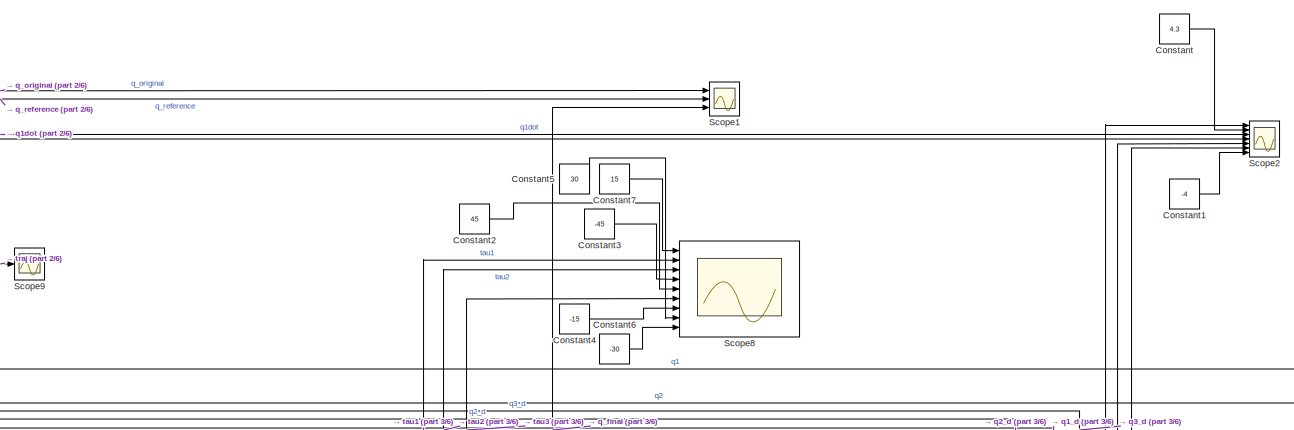
[diagram: root canvas - part 1/6, top right region]
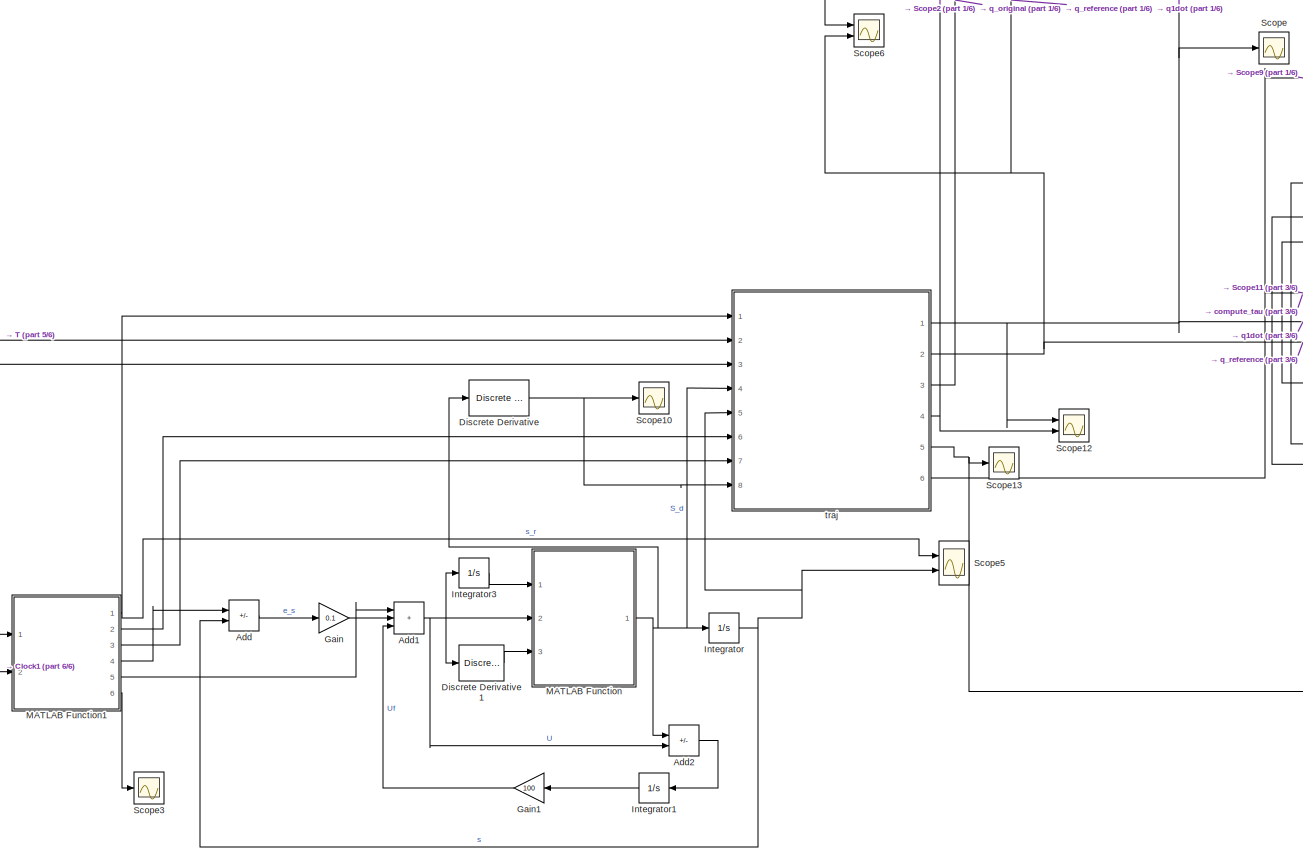
[diagram: root canvas - part 2/6, left side, full height]
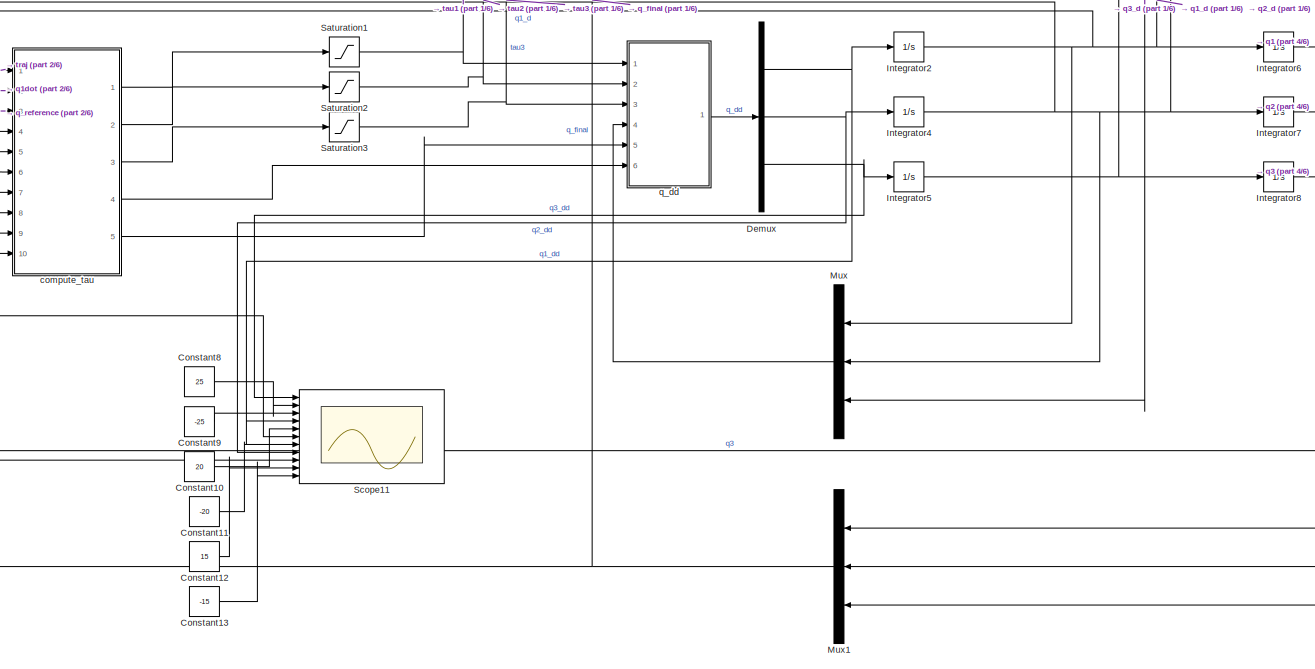
[diagram: root canvas - part 3/6, bottom right region]
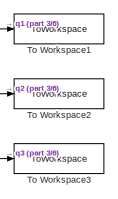
[diagram: root canvas - part 4/6, middle right region]
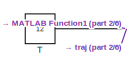
[diagram: root canvas - part 5/6, middle left region]
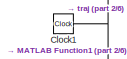
[diagram: root canvas - part 6/6, bottom left region]
MODEL slx_d51e2725e749
KIND model
CONFIG AbsTol = auto
CONFIG EnableMultiTasking = off
CONFIG FixedStep = auto
CONFIG MaxStep = 0.05
CONFIG MinStep = auto
CONFIG RelTol = 1e-3
CONFIG SampleTimeConstraint = Unconstrained
CONFIG SolverName = VariableStepAuto
CONFIG StartTime = 0.0
CONFIG StopTime = 12
BLOCK [Sum] Add
  IconShape = rectangular
  Inputs = +-
  Ports = [2, 1]
BLOCK [Sum] Add1
  IconShape = rectangular
  Inputs = +++
  Ports = [3, 1]
BLOCK [Sum] Add2
  IconShape = rectangular
  Inputs = +-
  Ports = [2, 1]
BLOCK [Clock] Clock1
BLOCK [Constant] Constant
  Value = 4.3
BLOCK [Constant] Constant1
  Value = -4
BLOCK [Constant] Constant10
  Value = 20
BLOCK [Constant] Constant11
  Value = -20
BLOCK [Constant] Constant12
  Value = 15
BLOCK [Constant] Constant13
  Value = -15
BLOCK [Constant] Constant2
  Value = 45
BLOCK [Constant] Constant3
  Value = -45
BLOCK [Constant] Constant4
  Value = -15
BLOCK [Constant] Constant5
  Value = 30
BLOCK [Constant] Constant6
  Value = -30
BLOCK [Constant] Constant7
  Value = 15
BLOCK [Constant] Constant8
  Value = 25
BLOCK [Constant] Constant9
  Value = -25
BLOCK [Demux] Demux
  Outputs = 3
  Ports = [1, 3]
BLOCK [Reference] Discrete Derivative  REF=simulink/Discrete/Discrete Derivative
  Ports = [1, 1]
  SourceBlock = simulink/Discrete/Discrete Derivative
  SourceProductBaseCode = SL
  SourceType = Discrete Derivative
BLOCK [Reference] Discrete Derivative1  REF=simulink/Discrete/Discrete Derivative
  Ports = [1, 1]
  SourceBlock = simulink/Discrete/Discrete Derivative
  SourceProductBaseCode = SL
  SourceType = Discrete Derivative
BLOCK [Gain] Gain
  Gain = 0.1
BLOCK [Gain] Gain1
  Gain = 100
BLOCK [Integrator] Integrator
  Ports = [1, 1]
BLOCK [Integrator] Integrator1
  Ports = [1, 1]
BLOCK [Integrator] Integrator2
  Ports = [1, 1]
BLOCK [Integrator] Integrator3
  Ports = [1, 1]
BLOCK [Integrator] Integrator4
  Ports = [1, 1]
BLOCK [Integrator] Integrator5
  Ports = [1, 1]
BLOCK [Integrator] Integrator6
  InitialCondition = 2.6180
  Ports = [1, 1]
BLOCK [Integrator] Integrator7
  InitialCondition = -2.0944
  Ports = [1, 1]
BLOCK [Integrator] Integrator8
  InitialCondition = -0.5236
  Ports = [1, 1]
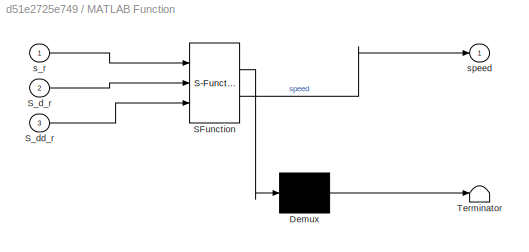
BLOCK [SubSystem] MATLAB Function
  ErrorFcn = Stateflow.Translate.translate
  PermitHierarchicalResolution = ExplicitOnly
  Ports = [3, 1]
  RequestExecContextInheritance = off
  SFBlockType = MATLAB Function
  TreatAsAtomicUnit = on
BLOCK [Demux] MATLAB Function/ Demux 
  Outputs = 1
  Ports = [1, 1]
BLOCK [S-Function] MATLAB Function/ SFunction 
  EnableBusSupport = on
  FunctionName = sf_sfun
  PortCounts = [3 2]
  Ports = [3, 2]
  SFcnIsStateOwnerBlock = off
  SFunctionDeploymentMode = off
  Tag = Stateflow S-Function 5
BLOCK [Terminator] MATLAB Function/ Terminator 
BLOCK [Inport] MATLAB Function/S_d_r
  Port = 2
BLOCK [Inport] MATLAB Function/S_dd_r
  Port = 3
BLOCK [Inport] MATLAB Function/s_r
BLOCK [Outport] MATLAB Function/speed
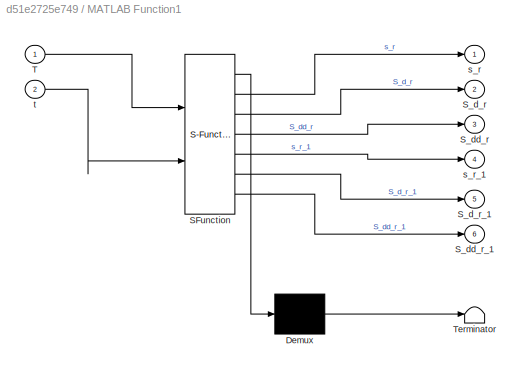
BLOCK [SubSystem] MATLAB Function1
  ErrorFcn = Stateflow.Translate.translate
  PermitHierarchicalResolution = ExplicitOnly
  Ports = [2, 6]
  RequestExecContextInheritance = off
  SFBlockType = MATLAB Function
  TreatAsAtomicUnit = on
BLOCK [Demux] MATLAB Function1/ Demux 
  Outputs = 1
  Ports = [1, 1]
BLOCK [S-Function] MATLAB Function1/ SFunction 
  EnableBusSupport = on
  FunctionName = sf_sfun
  PortCounts = [2 7]
  Ports = [2, 7]
  SFcnIsStateOwnerBlock = off
  SFunctionDeploymentMode = off
  Tag = Stateflow S-Function 3
BLOCK [Terminator] MATLAB Function1/ Terminator 
BLOCK [Outport] MATLAB Function1/S_d_r
  Port = 2
BLOCK [Outport] MATLAB Function1/S_d_r_1
  Port = 5
BLOCK [Outport] MATLAB Function1/S_dd_r
  Port = 3
BLOCK [Outport] MATLAB Function1/S_dd_r_1
  Port = 6
BLOCK [Inport] MATLAB Function1/T
BLOCK [Outport] MATLAB Function1/s_r
BLOCK [Outport] MATLAB Function1/s_r_1
  Port = 4
BLOCK [Inport] MATLAB Function1/t
  Port = 2
BLOCK [Mux] Mux
  DisplayOption = bar
  Inputs = 3
  NameLocation = top
  Ports = [3, 1]
BLOCK [Mux] Mux1
  DisplayOption = bar
  Inputs = 3
  NameLocation = top
  Ports = [3, 1]
BLOCK [Saturate] Saturation1
  LinearizeAsGain = off
  LowerLimit = -45
  UpperLimit = 45
  ZeroCross = off
BLOCK [Saturate] Saturation2
  LinearizeAsGain = off
  LowerLimit = -30
  UpperLimit = 30
  ZeroCross = off
BLOCK [Saturate] Saturation3
  LinearizeAsGain = off
  LowerLimit = -15
  UpperLimit = 15
  ZeroCross = off
BLOCK [Scope] Scope
  Floating = off
  NumInputPorts = 1
  Ports = [1]
  ScopeSpecificationString = Simulink.scopes.TimeScopeBlockCfg('CurrentConfiguration', extmgr.ConfigurationSet(extmgr.Configuration('Core','General UI',true),extmgr.Configuration('Core','Source UI',true),extmgr.Configuration('Sources','WiredSimulink',true,'DataLoggingVariableName','ScopeData1'),extmgr.Configuration('Visuals','Time Domain',true,'SerializedDisplays',{struct('MinYLimReal','-4.88616','MaxYLimReal','4.94424','YLab...<+1415ch>
BLOCK [Scope] Scope1
  Floating = off
  NumInputPorts = 3
  Ports = [3]
  ScopeSpecificationString = Simulink.scopes.TimeScopeBlockCfg('CurrentConfiguration', extmgr.ConfigurationSet(extmgr.Configuration('Core','General UI',true,'FigureColor',[1 1 1]),extmgr.Configuration('Core','Source UI',true),extmgr.Configuration('Sources','WiredSimulink',true,'DataLoggingVariableName','ScopeData2'),extmgr.Configuration('Visuals','Time Domain',true,'SerializedDisplays',{struct('MinYLimReal','-3.46179','MaxYLi...<+2127ch>
BLOCK [Scope] Scope10
  Floating = off
  NumInputPorts = 1
  Ports = [1]
  ScopeSpecificationString = Simulink.scopes.TimeScopeBlockCfg('CurrentConfiguration', extmgr.ConfigurationSet(extmgr.Configuration('Core','General UI',true),extmgr.Configuration('Core','Source UI',true),extmgr.Configuration('Sources','WiredSimulink',true,'DataLoggingVariableName','ScopeData1'),extmgr.Configuration('Visuals','Time Domain',true,'SerializedDisplays',{struct('MinYLimReal','-0.04466','MaxYLimReal','0.0458','YLabe...<+1374ch>
BLOCK [Scope] Scope11
  Floating = off
  NumInputPorts = 11
  Ports = [11]
  ScopeSpecificationString = Simulink.scopes.TimeScopeBlockCfg('CurrentConfiguration', extmgr.ConfigurationSet(extmgr.Configuration('Core','General UI',true,'FigureColor',[1 1 1]),extmgr.Configuration('Core','Source UI',true),extmgr.Configuration('Sources','WiredSimulink',true,'DataLoggingVariableName','ScopeData2'),extmgr.Configuration('Visuals','Time Domain',true,'SerializedDisplays',{struct('MinYLimReal','-31.25','MaxYLimR...<+3347ch>
BLOCK [Scope] Scope12
  Floating = off
  NumInputPorts = 2
  Ports = [2]
  ScopeSpecificationString = Simulink.scopes.TimeScopeBlockCfg('CurrentConfiguration', extmgr.ConfigurationSet(extmgr.Configuration('Core','General UI',true),extmgr.Configuration('Core','Source UI',true),extmgr.Configuration('Sources','WiredSimulink',true,'DataLoggingVariableName','ScopeData1'),extmgr.Configuration('Visuals','Time Domain',true,'SerializedDisplays',{struct('MinYLimReal','-5.2981','MaxYLimReal','5.66192','YLabe...<+1605ch>
BLOCK [Scope] Scope13
  Floating = off
  NumInputPorts = 1
  Ports = [1]
  ScopeSpecificationString = Simulink.scopes.TimeScopeBlockCfg('CurrentConfiguration', extmgr.ConfigurationSet(extmgr.Configuration('Core','General UI',true),extmgr.Configuration('Core','Source UI',true),extmgr.Configuration('Sources','WiredSimulink',true,'DataLoggingVariableName','ScopeData2'),extmgr.Configuration('Visuals','Time Domain',true),extmgr.Configuration('Tools','Plot Navigation',true),extmgr.Configuration('Tools',...<+40ch>
BLOCK [Scope] Scope2
  Floating = off
  NumInputPorts = 7
  Ports = [7]
  ScopeSpecificationString = Simulink.scopes.TimeScopeBlockCfg('CurrentConfiguration', extmgr.ConfigurationSet(extmgr.Configuration('Core','General UI',true,'FigureColor',[1 1 1]),extmgr.Configuration('Core','Source UI',true),extmgr.Configuration('Sources','WiredSimulink',true,'DataLoggingVariableName','ScopeData3'),extmgr.Configuration('Visuals','Time Domain',true,'SerializedDisplays',{struct('MinYLimReal','-4.43538','MaxYLi...<+2607ch>
BLOCK [Scope] Scope3
  Floating = off
  NumInputPorts = 1
  Ports = [1]
  ScopeSpecificationString = Simulink.scopes.TimeScopeBlockCfg('CurrentConfiguration', extmgr.ConfigurationSet(extmgr.Configuration('Core','General UI',true),extmgr.Configuration('Core','Source UI',true),extmgr.Configuration('Sources','WiredSimulink',true,'DataLoggingVariableName','ScopeData1'),extmgr.Configuration('Visuals','Time Domain',true),extmgr.Configuration('Tools','Plot Navigation',true),extmgr.Configuration('Tools',...<+40ch>
BLOCK [Scope] Scope5
  Floating = off
  NumInputPorts = 2
  Ports = [2]
  ScopeSpecificationString = Simulink.scopes.TimeScopeBlockCfg('CurrentConfiguration', extmgr.ConfigurationSet(extmgr.Configuration('Core','General UI',true),extmgr.Configuration('Core','Source UI',true),extmgr.Configuration('Sources','WiredSimulink',true,'DataLoggingVariableName','ScopeData6'),extmgr.Configuration('Visuals','Time Domain',true,'SerializedDisplays',{struct('MinYLimReal','-0.125','MaxYLimReal','1.125','YLabelRe...<+1430ch>
BLOCK [Scope] Scope6
  Floating = off
  NumInputPorts = 2
  Ports = [2]
  ScopeSpecificationString = Simulink.scopes.TimeScopeBlockCfg('CurrentConfiguration', extmgr.ConfigurationSet(extmgr.Configuration('Core','General UI',true),extmgr.Configuration('Core','Source UI',true),extmgr.Configuration('Sources','WiredSimulink',true,'DataLoggingVariableName','ScopeData7'),extmgr.Configuration('Visuals','Time Domain',true,'SerializedDisplays',{struct('MinYLimReal','-3.45858','MaxYLimReal','3.29317','YLab...<+1613ch>
BLOCK [Scope] Scope8
  Floating = off
  NumInputPorts = 9
  Ports = [9]
  ScopeSpecificationString = Simulink.scopes.TimeScopeBlockCfg('CurrentConfiguration', extmgr.ConfigurationSet(extmgr.Configuration('Core','General UI',true,'FigureColor',[1 1 1]),extmgr.Configuration('Core','Source UI',true),extmgr.Configuration('Sources','WiredSimulink',true,'DataLoggingVariableName','ScopeData9'),extmgr.Configuration('Visuals','Time Domain',true,'SerializedDisplays',{struct('MinYLimReal','-56.25','MaxYLimR...<+2485ch>
BLOCK [Scope] Scope9
  Floating = off
  NumInputPorts = 1
  Ports = [1]
  ScopeSpecificationString = Simulink.scopes.TimeScopeBlockCfg('CurrentConfiguration', extmgr.ConfigurationSet(extmgr.Configuration('Core','General UI',true),extmgr.Configuration('Core','Source UI',true),extmgr.Configuration('Sources','WiredSimulink',true),extmgr.Configuration('Visuals','Time Domain',true,'SerializedDisplays',{struct('MinYLimReal','-14.27761','MaxYLimReal','6.809','YLabelReal','','MinYLimMag','0.00000','MaxYL...<+1404ch>
BLOCK [Constant] T
  Value = 12
BLOCK [ToWorkspace] To Workspace1
  FixptAsFi = on
  MaxDataPoints = inf
  Ports = [1]
  SampleTime = -1
  VariableName = q1
BLOCK [ToWorkspace] To Workspace2
  FixptAsFi = on
  MaxDataPoints = inf
  Ports = [1]
  SampleTime = -1
  VariableName = q2
BLOCK [ToWorkspace] To Workspace3
  FixptAsFi = on
  MaxDataPoints = inf
  Ports = [1]
  SampleTime = -1
  VariableName = q3
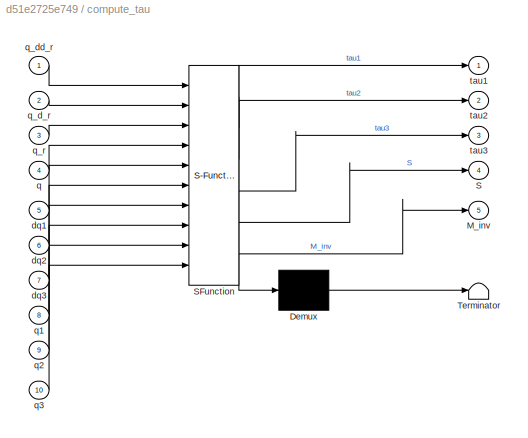
BLOCK [SubSystem] compute_tau
  ErrorFcn = Stateflow.Translate.translate
  PermitHierarchicalResolution = ExplicitOnly
  Ports = [10, 5]
  RequestExecContextInheritance = off
  SFBlockType = MATLAB Function
  TreatAsAtomicUnit = on
BLOCK [Demux] compute_tau/ Demux 
  Outputs = 1
  Ports = [1, 1]
BLOCK [S-Function] compute_tau/ SFunction 
  EnableBusSupport = on
  FunctionName = sf_sfun
  PortCounts = [10 6]
  Ports = [10, 6]
  SFcnIsStateOwnerBlock = off
  SFunctionDeploymentMode = off
  Tag = Stateflow S-Function 2
BLOCK [Terminator] compute_tau/ Terminator 
BLOCK [Outport] compute_tau/M_inv
  Port = 5
BLOCK [Outport] compute_tau/S
  Port = 4
BLOCK [Inport] compute_tau/dq1
  Port = 5
BLOCK [Inport] compute_tau/dq2
  Port = 6
BLOCK [Inport] compute_tau/dq3
  Port = 7
BLOCK [Inport] compute_tau/q
  Port = 4
BLOCK [Inport] compute_tau/q1
  Port = 8
BLOCK [Inport] compute_tau/q2
  Port = 9
BLOCK [Inport] compute_tau/q3
  Port = 10
BLOCK [Inport] compute_tau/q_d_r
  Port = 2
BLOCK [Inport] compute_tau/q_dd_r
BLOCK [Inport] compute_tau/q_r
  Port = 3
BLOCK [Outport] compute_tau/tau1
BLOCK [Outport] compute_tau/tau2
  Port = 2
BLOCK [Outport] compute_tau/tau3
  Port = 3
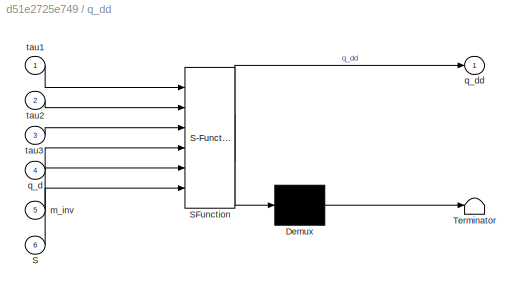
BLOCK [SubSystem] q_dd
  ErrorFcn = Stateflow.Translate.translate
  PermitHierarchicalResolution = ExplicitOnly
  Ports = [6, 1]
  RequestExecContextInheritance = off
  SFBlockType = MATLAB Function
  TreatAsAtomicUnit = on
BLOCK [Demux] q_dd/ Demux 
  Outputs = 1
  Ports = [1, 1]
BLOCK [S-Function] q_dd/ SFunction 
  EnableBusSupport = on
  FunctionName = sf_sfun
  PortCounts = [6 2]
  Ports = [6, 2]
  SFcnIsStateOwnerBlock = off
  SFunctionDeploymentMode = off
  Tag = Stateflow S-Function 1
BLOCK [Terminator] q_dd/ Terminator 
BLOCK [Inport] q_dd/S
  Port = 6
BLOCK [Inport] q_dd/m_inv
  Port = 5
BLOCK [Inport] q_dd/q_d
  Port = 4
BLOCK [Outport] q_dd/q_dd
BLOCK [Inport] q_dd/tau1
BLOCK [Inport] q_dd/tau2
  Port = 2
BLOCK [Inport] q_dd/tau3
  Port = 3
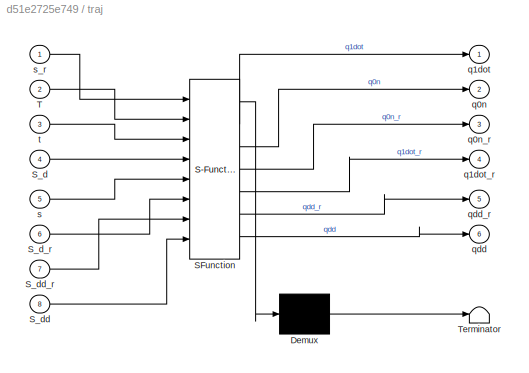
BLOCK [SubSystem] traj
  ErrorFcn = Stateflow.Translate.translate
  PermitHierarchicalResolution = ExplicitOnly
  Ports = [8, 6]
  RequestExecContextInheritance = off
  SFBlockType = MATLAB Function
  TreatAsAtomicUnit = on
BLOCK [Demux] traj/ Demux 
  Outputs = 1
  Ports = [1, 1]
BLOCK [S-Function] traj/ SFunction 
  EnableBusSupport = on
  FunctionName = sf_sfun
  PortCounts = [8 7]
  Ports = [8, 7]
  SFcnIsStateOwnerBlock = off
  SFunctionDeploymentMode = off
  Tag = Stateflow S-Function 4
BLOCK [Terminator] traj/ Terminator 
BLOCK [Inport] traj/S_d
  Port = 4
BLOCK [Inport] traj/S_d_r
  Port = 6
BLOCK [Inport] traj/S_dd
  Port = 8
BLOCK [Inport] traj/S_dd_r
  Port = 7
BLOCK [Inport] traj/T
  Port = 2
BLOCK [Outport] traj/q0n
  Port = 2
BLOCK [Outport] traj/q0n_r
  Port = 3
BLOCK [Outport] traj/q1dot
BLOCK [Outport] traj/q1dot_r
  Port = 4
BLOCK [Outport] traj/qdd
  Port = 6
BLOCK [Outport] traj/qdd_r
  Port = 5
BLOCK [Inport] traj/s
  Port = 5
BLOCK [Inport] traj/s_r
BLOCK [Inport] traj/t
  Port = 3
NET Add1:1 -> Add2:2, Discrete Derivative1:1, Integrator3:1, MATLAB Function:2
LINE Add2:1 -> Integrator1:1
LINE Add:1 -> Gain:1
NET Clock1:1 -> MATLAB Function1:2, traj:3
LINE Constant10:1 -> Scope11:5
LINE Constant11:1 -> Scope11:7
LINE Constant12:1 -> Scope11:10
LINE Constant13:1 -> Scope11:11
LINE Constant1:1 -> Scope2:7
LINE Constant2:1 -> Scope8:5
LINE Constant3:1 -> Scope8:4
LINE Constant4:1 -> Scope8:7
LINE Constant5:1 -> Scope8:8
LINE Constant6:1 -> Scope8:9
LINE Constant7:1 -> Scope8:1
LINE Constant8:1 -> Scope11:2
LINE Constant9:1 -> Scope11:3
LINE Constant:1 -> Scope2:2
NET Demux:1 -> Integrator2:1, Scope11:4
NET Demux:2 -> Integrator4:1, Scope11:8
NET Demux:3 -> Integrator5:1, Scope11:1
LINE Discrete Derivative1:1 -> MATLAB Function:3
NET Discrete Derivative:1 -> Scope10:1, traj:8
LINE Gain1:1 -> Add1:3
LINE Gain:1 -> Add1:2
LINE Integrator1:1 -> Gain1:1
NET Integrator2:1 -> Integrator6:1, Mux:1, Scope2:5, compute_tau:5
LINE Integrator3:1 -> MATLAB Function:1
NET Integrator4:1 -> Integrator7:1, Mux:2, Scope2:6, compute_tau:6
NET Integrator5:1 -> Integrator8:1, Mux:3, Scope2:1, compute_tau:7
NET Integrator6:1 -> Mux1:1, To Workspace1:1, compute_tau:8
NET Integrator7:1 -> Mux1:2, To Workspace2:1, compute_tau:9
NET Integrator8:1 -> Mux1:3, To Workspace3:1, compute_tau:10
NET Integrator:1 -> Add:2, Scope5:2, traj:5
NET MATLAB Function1:1 -> Scope5:1, traj:1
LINE MATLAB Function1:2 -> traj:6
LINE MATLAB Function1:3 -> traj:7
LINE MATLAB Function1:4 -> Add:1
LINE MATLAB Function1:5 -> Add1:1
LINE MATLAB Function1:6 -> Scope3:1
NET MATLAB Function:1 -> Add2:1, Discrete Derivative:1, Integrator:1, traj:4
NET Mux1:1 -> Scope1:3, compute_tau:4
LINE Mux:1 -> q_dd:4
NET Saturation1:1 -> Scope8:2, q_dd:1
NET Saturation2:1 -> Scope8:3, q_dd:2
NET Saturation3:1 -> Scope8:6, q_dd:3
NET T:1 -> MATLAB Function1:1, traj:2
LINE compute_tau:1 -> Saturation1:1
LINE compute_tau:2 -> Saturation2:1
LINE compute_tau:3 -> Saturation3:1
LINE compute_tau:4 -> q_dd:6
LINE compute_tau:5 -> q_dd:5
LINE q_dd:1 -> Demux:1
NET traj:1 -> Scope12:1, Scope2:3, Scope:1, compute_tau:2
NET traj:2 -> Scope1:2, Scope6:2, compute_tau:3
NET traj:3 -> Scope1:1, Scope6:1
NET traj:4 -> Scope12:2, Scope2:4
NET traj:5 -> Scope11:9, Scope13:1
NET traj:6 -> Scope11:6, Scope9:1, compute_tau:1
note: NET lines group one-source signal fan-out (src -> all destinations, sorted); 1:1 wires keep LINE
CHART q_dd states=1 transitions=1
  STATE_LABEL 'eML_blk_kernel()'
  STATE_LABEL 'SCRIPT:\nfunction q_dd = compute_q_dd(tau1,tau2,tau3,q_d,m_inv,S)\n\ntau = [tau1;\n       tau2;\n       tau3];\nq_dd = m_inv*(tau - (S*q_d));\n\n'
CHART compute_tau states=1 transitions=1
  STATE_LABEL 'eML_blk_kernel()'
  STATE_LABEL 'SCRIPT:\nfunction [tau1,tau2,tau3,S,M_inv] = compute_tau(q_dd_r, q_d_r, q_r, q,dq1,dq2,dq3,q1,q2,q3)\n\n% M(q)q_dd_r + S(q,q_d)q_d_r + Kp(q_r - q) + Kd (q_d_r - q_d)\n\n% \nKp = diag([0.1,0.1,0.1]);\n\nKd= diag([10,10,10]);\n\n% \n%NEW GAIN TO STABILIZE ACCELERATION\n% Kp = diag([30,30,30]);\n% \n% Kd = diag([100,100,100]);\n\n%%q\n\n% q1=q_r(1);\n% q2=q_r(2);\n% q3=q_r(3);\n% %%dq\n% dq1=q_d_r(1);\n% dq2=q_d_r(2);\n% dq...<+1950ch>'
CHART MATLAB Function1 states=1 transitions=1
  STATE_LABEL 'eML_blk_kernel()'
  STATE_LABEL 'SCRIPT:\nfunction [s_r, S_d_r, S_dd_r,s_r_1, S_d_r_1, S_dd_r_1] = timing_law(T, t)\n\ntau_t=t/T;\n%s_r = -2*tau_t^3 + 3*tau_t^2;\ns_r = 10*tau_t^3 - 15*tau_t^4 + 6*tau_t^5;\nS_d_r = (30*t^2)/T^3 - (60*t^3)/T^4 + (30*t^4)/T^5;\nS_dd_r=(60*t)/T^3 - (180*t^2)/T^4 + (120*t^3)/T^5;\nt_1 = t +0.0001;\ntau_t_1 = t_1/T;\ns_r_1 = 10*tau_t_1^3 - 15*tau_t_1^4 + 6*tau_t_1^5;\nS_d_r_1 = (30*t_1^2)/T^3 - (60*t_1^3)/T^4 + ...<+74ch>'
CHART traj states=1 transitions=1
  STATE_LABEL 'eML_blk_kernel()'
  STATE_LABEL 'SCRIPT:\nfunction [q1dot,q0n,q0n_r,q1dot_r, qdd_r, qdd] = trajectory(s_r, T, t, S_d, s, S_d_r, S_dd_r, S_dd)\n\n\n%Links length\nl1 = 1; l2 =1; l3 = 1;\n\n%Trajectory\n\np_s = [s + 1;\n    1 + sin(4*pi*s);\n    s];\n\np_s_r =  [s_r + 1;\n    1 + sin(4*pi*s_r);\n    s_r];\n\np1_s=[1;\n        4*pi*cos(4*pi*s);\n        1];\np1_s_r=[1;\n        4*pi*cos(4*pi*s_r);\n        1];\n\n%Velocity of the trajectory\npdot_s= p1_s* S...<+3608ch>'
CHART MATLAB Function states=1 transitions=1
  STATE_LABEL 'eML_blk_kernel()'
  STATE_LABEL "SCRIPT:\nfunction speed = trajectory(s_r, S_d_r,S_dd_r)\n\n%Links length\nl1 = 1; l2 =1; l3 = 1;\n\n%Trajectory\n\n\n%%% REFERENCE\n\n\np_s_r =  [s_r + 1;\n    1 + sin(4*pi*s_r);\n    s_r];\n\nR1_s_r=[1;\n        4*pi*cos(4*pi*s_r);\n        1];\n\n%Velocity of the trajectory\n\n\n%%pdot = R'*s'(t)\n\n\n\n\n%%% REFERENCE\n\n%%%POLYNOMIAL OF DEGREE 5 ---  0.4808 saturation --- 3.9 seconds\n% pdot_s_r=[ -(30*t^2*pi*sin((2*t^3*pi*...<+3608ch>"
CHART  states=0 transitions=0
CHART  states=0 transitions=0
CHART  states=0 transitions=0
CHART  states=0 transitions=0
CHART  states=0 transitions=0
